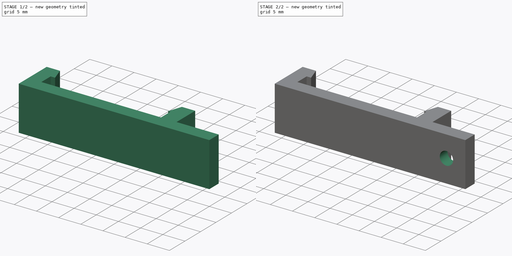
[diagram: build sequence overview — one tinted view per stage of 2, left to right]
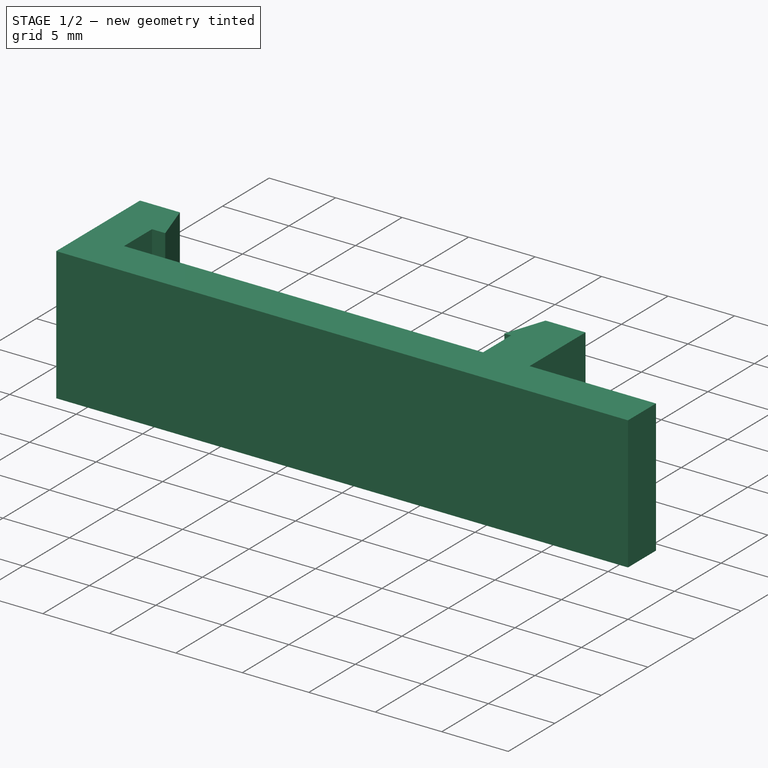
[diagram: stage 1 of 2 — iso view after this stage's code; geometry added in this stage tinted green]
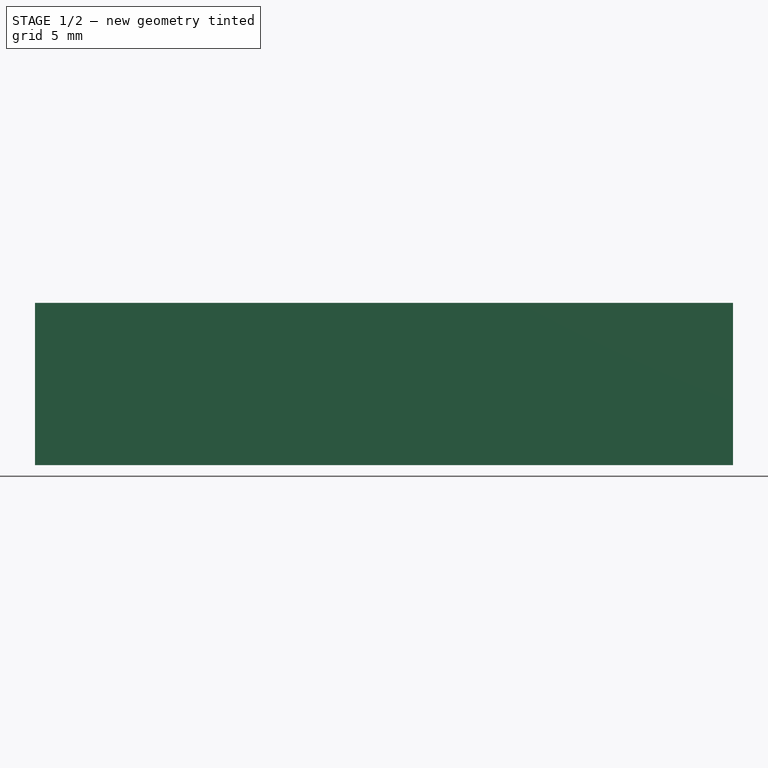
[diagram: stage 1 of 2 — front view after this stage's code; geometry added in this stage tinted green]
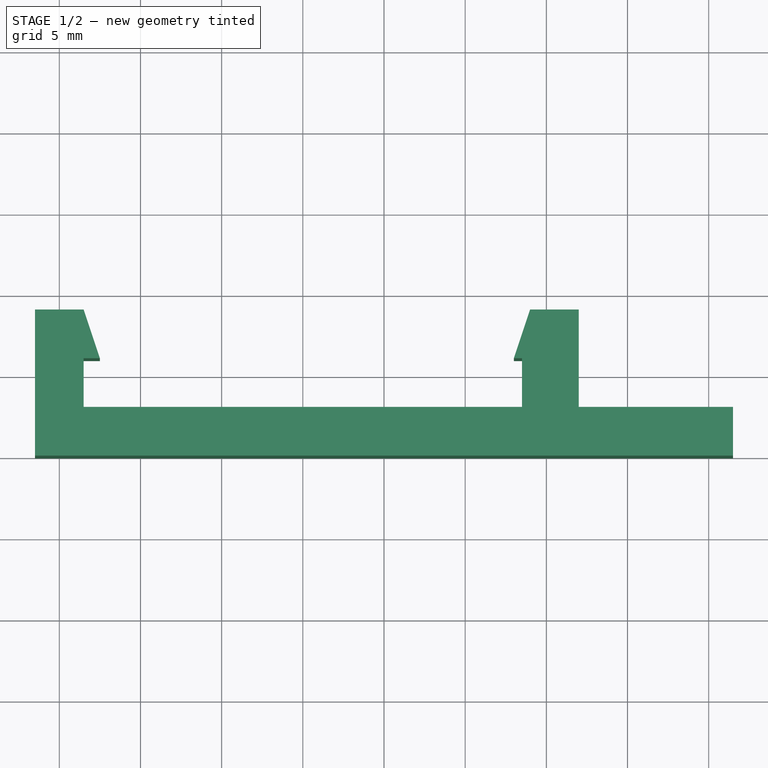
[diagram: stage 1 of 2 — top view after this stage's code; geometry added in this stage tinted green]
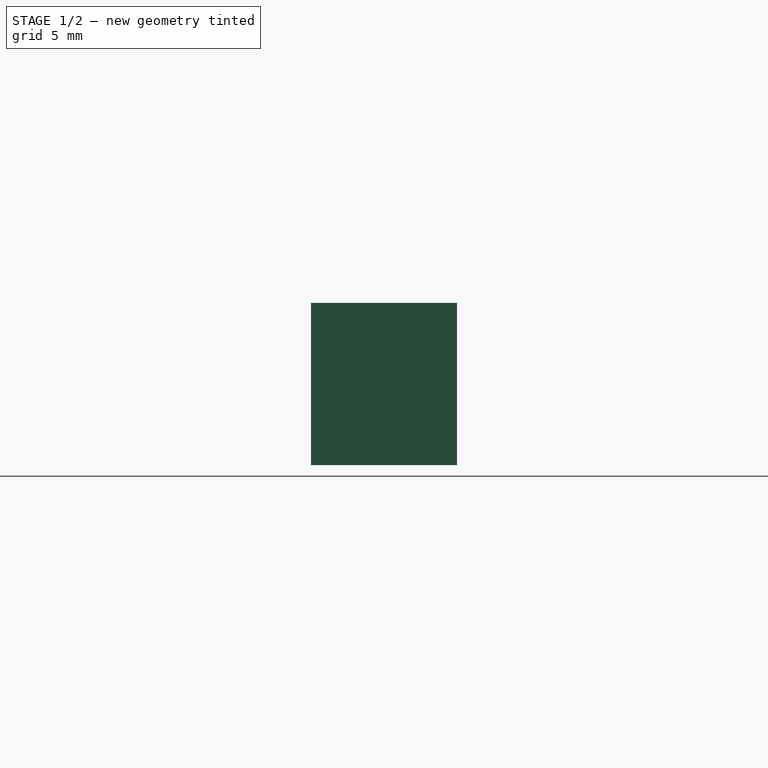
[diagram: stage 1 of 2 — right view after this stage's code; geometry added in this stage tinted green]
FCSTD DOCUMENT  (FreeCAD 0.18R16131 (Git))
Label: supportMCD
License: All rights reserved
LicenseURL: http://en.wikipedia.org/wiki/All_rights_reserved
objects: Sketcher::SketchObject×2, PartDesign::Pad×1, PartDesign::Plane×1, PartDesign::Hole×1, PartDesign::Body×1
note: 8 computed .brp shape members not serialized (recipe doc carries the construction recipe); baked Part::Feature solids carry a one-line shape summary decoded from their .brp

FEATURE [Sketcher::SketchObject] Sketch
  MapMode = 5
  Support = -> [XY_Plane]
  sketch-geometry (15):
    g0: LineSegment StartX=-16.5 StartY=9 StartZ=0 EndX=-16.5 EndY=0 EndZ=0
    g1: LineSegment StartX=-16.5 StartY=0 StartZ=0 EndX=16.5 EndY=0 EndZ=0
    g2: LineSegment StartX=17 StartY=3 StartZ=0 EndX=17 EndY=9 EndZ=0
    g3: LineSegment StartX=17 StartY=9 StartZ=0 EndX=14 EndY=9 EndZ=0
    g4: LineSegment StartX=14 StartY=9 StartZ=0 EndX=13 EndY=6 EndZ=0
    g5: LineSegment StartX=13 StartY=6 StartZ=0 EndX=13.5 EndY=6 EndZ=0
    g6: LineSegment StartX=13.5 StartY=6 StartZ=0 EndX=13.5 EndY=3 EndZ=0
    g7: LineSegment StartX=13.5 StartY=3 StartZ=0 EndX=-13.5 EndY=3 EndZ=0
    g8: LineSegment StartX=-13.5 StartY=3 StartZ=0 EndX=-13.5 EndY=6 EndZ=0
    g9: LineSegment StartX=-13.5 StartY=6 StartZ=0 EndX=-12.5 EndY=6 EndZ=0
    g10: LineSegment StartX=-12.5 StartY=6 StartZ=0 EndX=-13.5 EndY=9 EndZ=0
    g11: LineSegment StartX=-13.5 StartY=9 StartZ=0 EndX=-16.5 EndY=9 EndZ=0
    g12: LineSegment StartX=17 StartY=3 StartZ=0 EndX=26.5 EndY=3 EndZ=0
    g13: LineSegment StartX=26.5 StartY=3 StartZ=0 EndX=26.5 EndY=0 EndZ=0
    g14: LineSegment StartX=26.5 StartY=0 StartZ=0 EndX=16.5 EndY=0 EndZ=0
  constraints (43):
    c: Vertical(g0)
    c: Coincident(g0,g1)
    c: PointOnObject(g1,g-1)
    c: Vertical(g2)
    c: Coincident(g2,g3)
    c: Coincident(g3,g4)
    c: Coincident(g4,g5)
    c: Coincident(g5,g6)
    c: Vertical(g6)
    c: Coincident(g6,g7)
    c: Horizontal(g7)
    c: Coincident(g7,g8)
    c: Vertical(g8)
    c: Coincident(g8,g9)
    c: Coincident(g9,g10)
    c: Coincident(g10,g11)
    c: Coincident(g11,g0)
    c: Horizontal(g11)
    c: DistanceX(g7,g7) = 27
    c: DistanceX(g6,g1) = 3
    c: DistanceX(g0,g7) = 3
    c: DistanceY(g1,g6) = 3
    c: DistanceY(g7,g8) = 3
    c: DistanceY(g6,g6) = 3
    c: DistanceY(g8,g10) = 3
    c: DistanceY(g5,g3) = 3
    c: Horizontal(g3)
    c: Horizontal(g9)
    c: DistanceX(g9,g9) = 1
    c: DistanceX(g5,g5) = 0.5
    c: Symmetric(g0,g1,g-1)
    c: DistanceX(g11,g11) = 3
    c: DistanceX(g3,g3) = 3
    c: Horizontal(g5)
    c: Coincident(g12,g13)
    c: Coincident(g13,g14)
    c: Horizontal(g12)
    c: Horizontal(g14)
    c: Vertical(g13)
    c: DistanceY(g13,g13) = 3
    c: DistanceX(g14,g14) = 10
    c: Coincident(g2,g12)
    c: Coincident(g14,g1)
FEATURE [PartDesign::Pad] Pad
  Length = 10
  Length2 = 100
  Profile = -> Sketch
  Type = 0
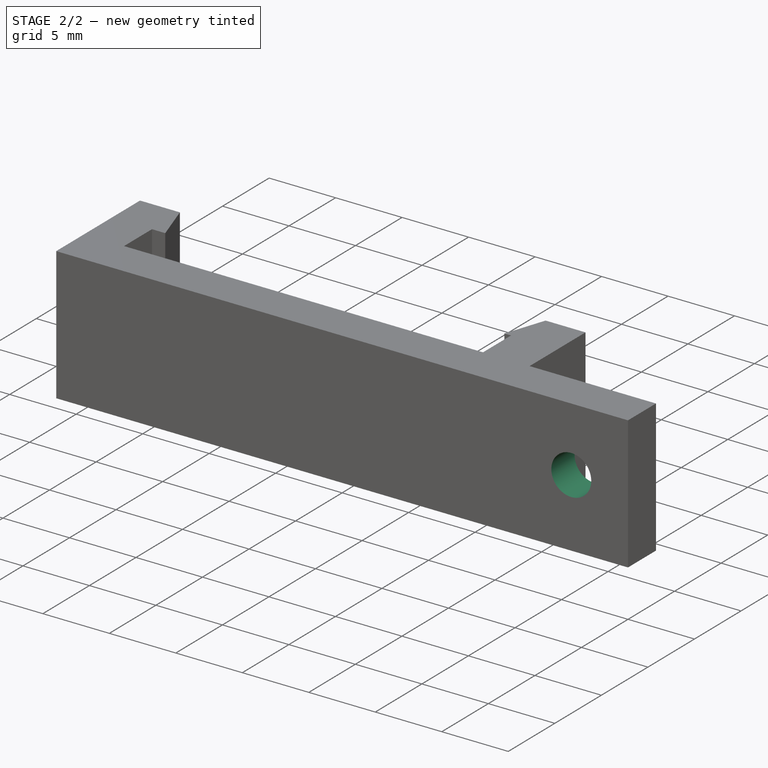
[diagram: stage 2 of 2 — iso view after this stage's code; geometry added in this stage tinted green]
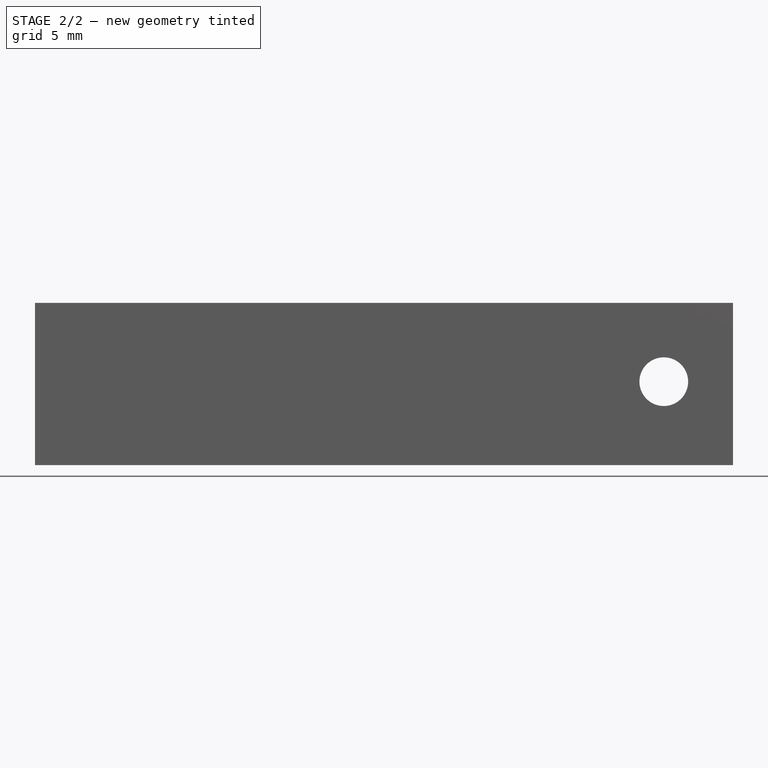
[diagram: stage 2 of 2 — front view after this stage's code; geometry added in this stage tinted green]
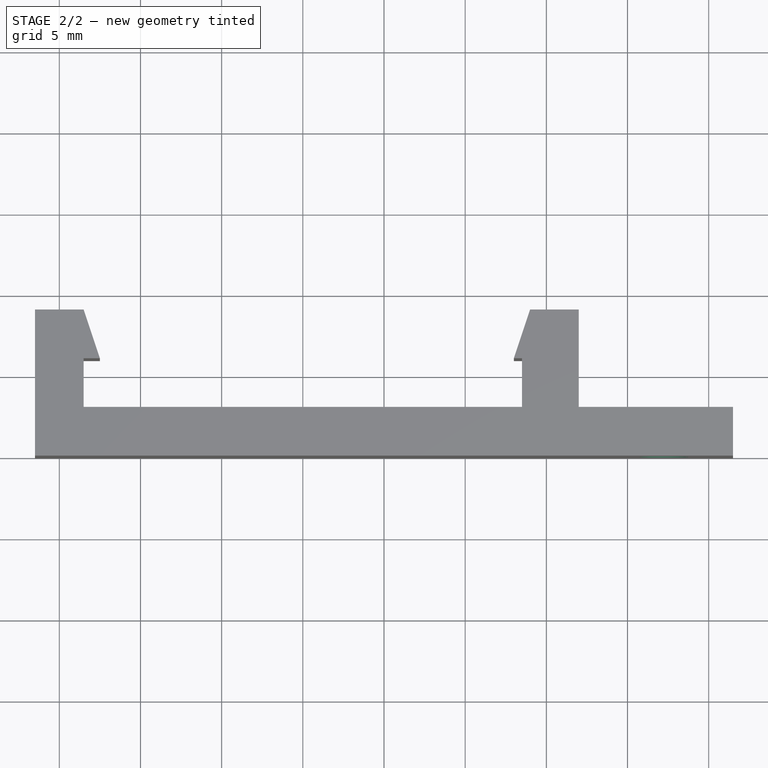
[diagram: stage 2 of 2 — top view after this stage's code; geometry added in this stage tinted green]
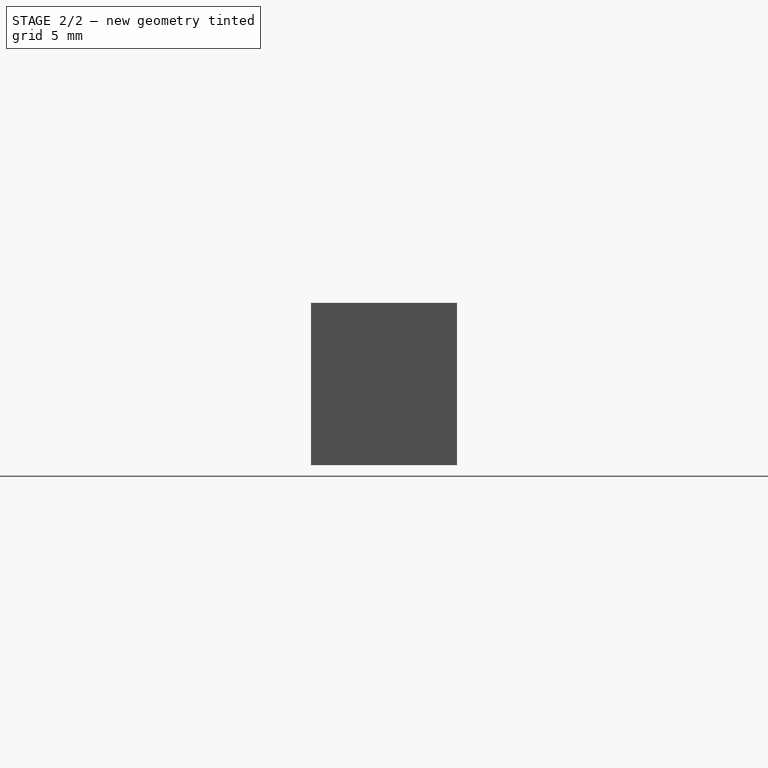
[diagram: stage 2 of 2 — right view after this stage's code; geometry added in this stage tinted green]
FEATURE [PartDesign::Plane] DatumPlane
  Length = 48.8652
  MapMode = 5
  Placement = pos=(0,3,0) rot=(0,0.707107,0.707107;3.14159rad)
  ResizeMode = 0
  Support = -> [Pad]
  Width = 25.8652
FEATURE [Sketcher::SketchObject] Sketch001
  MapMode = 5
  Placement = pos=(0,3,0) rot=(0,0.707107,0.707107;3.14159rad)
  Support = -> [DatumPlane]
  sketch-geometry (1):
    g0: Circle CenterX=-22.2341 CenterY=5.14335 CenterZ=0 NormalX=0 NormalY=0 NormalZ=1 AngleXU=0 Radius=1.5
  constraints (1):
    c: Radius(g0) = 1.5
FEATURE [PartDesign::Hole] Hole
  BaseFeature = -> Pad
  Depth = 25
  DepthType = 1
  Diameter = 3
  DrillPoint = 1
  DrillPointAngle = 118
  HoleCutCountersinkAngle = 90
  HoleCutDepth = 1
  HoleCutDiameter = 4
  HoleCutType = 2
  ModelActualThread = false
  Profile = -> Sketch001
  Tapered = false
  TaperedAngle = 90
  ThreadAngle = 0
  ThreadClass = 0
  ThreadCutOffInner = 0
  ThreadCutOffOuter = 0
  ThreadDirection = 0
  ThreadFit = 0
  ThreadPitch = 0
  ThreadSize = 0
  ThreadType = 0
  Threaded = false
FEATURE [PartDesign::Body] Body
  Group = -> [Sketch,Pad,DatumPlane,Sketch001,Hole]
  Origin = -> Origin
  Tip = -> Hole
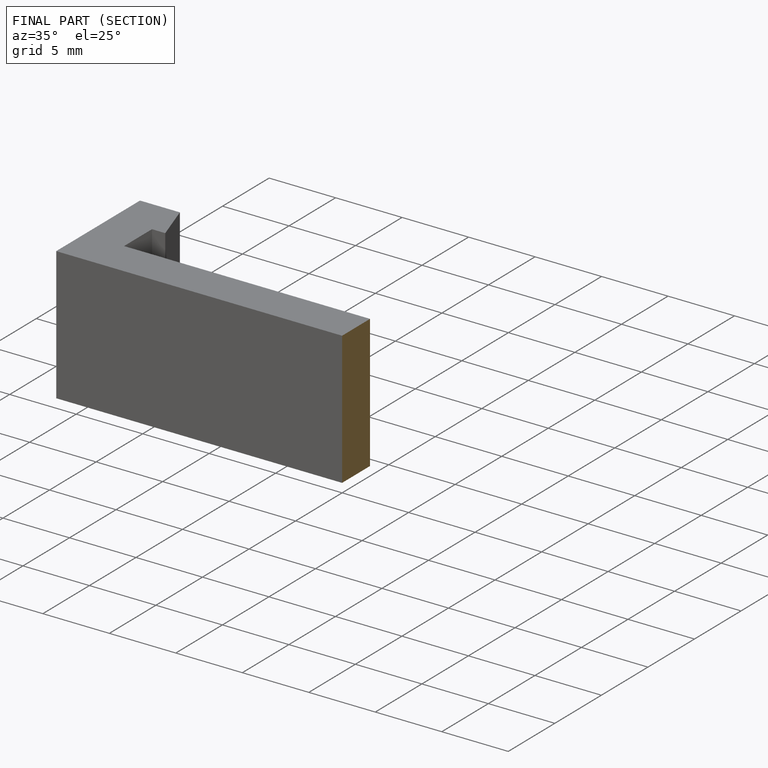
[diagram: finished part — half-section view (interior)]
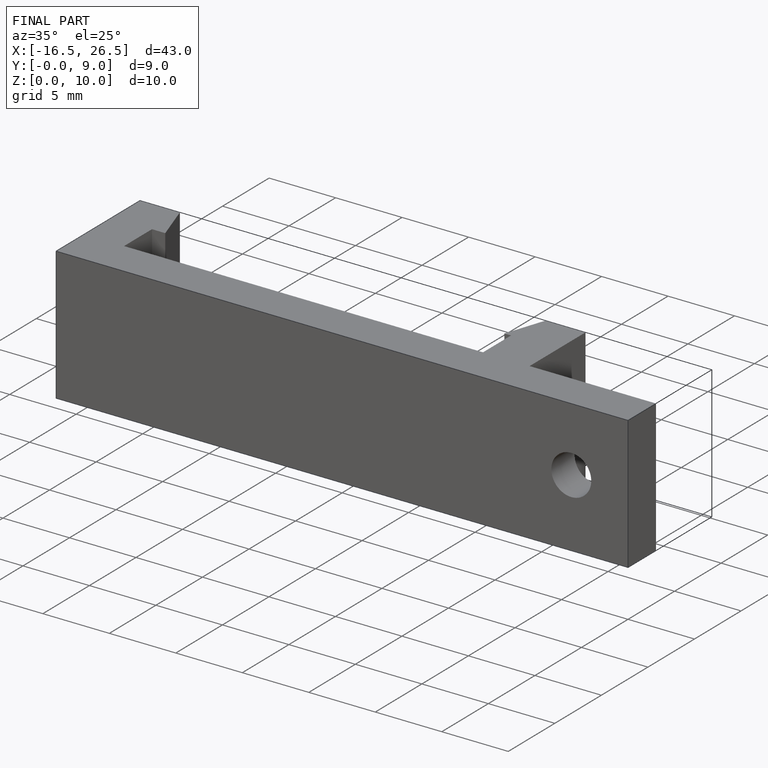
[diagram: finished part — iso view with bounding-box wireframe]
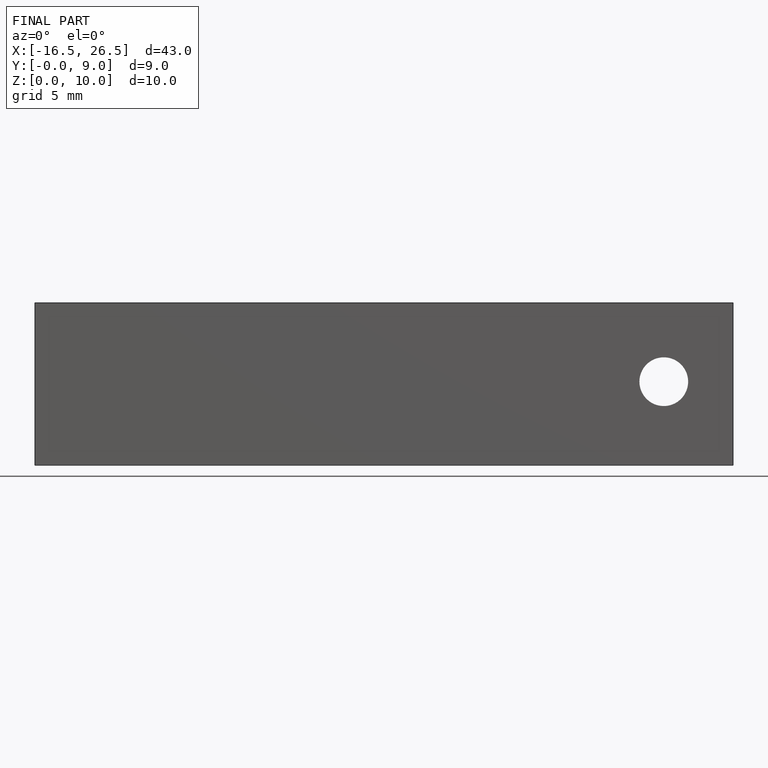
[diagram: finished part — front view with bounding-box wireframe]
